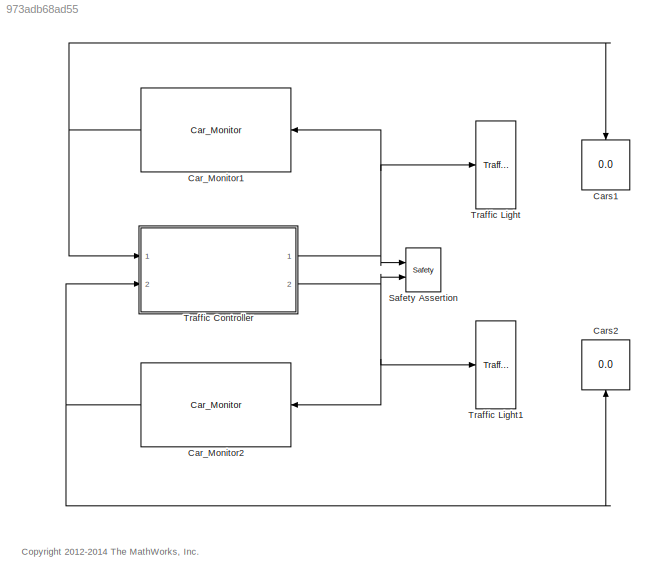
MODEL slx_973adb68ad55
KIND model
CONFIG AbsTol = auto
CONFIG EnableMultiTasking = on
CONFIG FixedStep = 0.1
CONFIG MaxStep = auto
CONFIG MinStep = auto
CONFIG RelTol = 1e-3
CONFIG SampleTimeConstraint = Unconstrained
CONFIG Solver = FixedStepDiscrete
CONFIG SolverName = FixedStepDiscrete
CONFIG StartTime = 0.0
CONFIG StopTime = 1000
BLOCK [Display]  Cars1
  Decimation = 1
  Ports = [1]
BLOCK [Display]  Cars2
  Decimation = 1
  Ports = [1]
BLOCK [Reference] Car_Monitor1  REF=sf_traffic_light_lib/Car_Monitor  (lib defined in slx_f96d7aa5815d)
  Ports = [1, 1]
  SourceBlock = sf_traffic_light_lib/Car_Monitor
  SourceProductBaseCode = SF
  SourceProductName = Stateflow
  SourceType = SubSystem
BLOCK [Reference] Car_Monitor2  REF=sf_traffic_light_lib/Car_Monitor  (lib defined in slx_f96d7aa5815d)
  Ports = [1, 1]
  SourceBlock = sf_traffic_light_lib/Car_Monitor
  SourceProductBaseCode = SF
  SourceProductName = Stateflow
  SourceType = SubSystem
BLOCK [Reference] Safety Assertion  REF=sf_traffic_light_lib/Safety  (lib defined in slx_f96d7aa5815d)
  Ports = [2]
  SourceBlock = sf_traffic_light_lib/Safety
  SourceProductBaseCode = SF
  SourceProductName = Stateflow
  SourceType = SubSystem
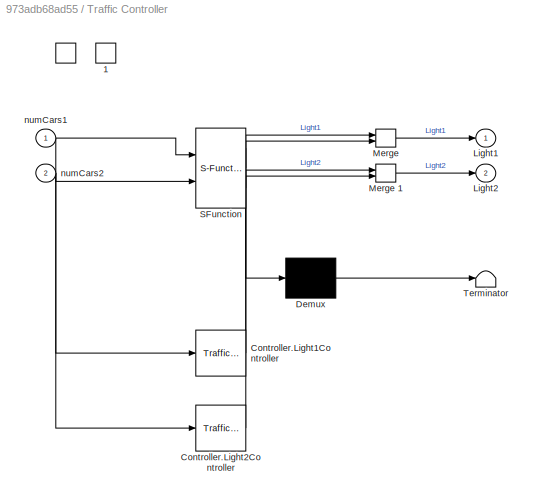
BLOCK [SubSystem] Traffic Controller
  ErrorFcn = Stateflow.Translate.translate
  PermitHierarchicalResolution = ExplicitOnly
  Ports = [2, 2]
  RequestExecContextInheritance = off
  SFBlockType = Chart
  TreatAsAtomicUnit = on
  Variant = off
BLOCK [DataStoreMemory] Traffic Controller/ 
  DataStoreName = greenLightLocked
  InitialValue = Stateflow.SLINSF.SimulinkMan.getDSMInitVal([1], 0, 'greenLightLocked')
  OutDataTypeStr = boolean
  ShowAdditionalParam = off
  SignalType = real
BLOCK [DataStoreMemory] Traffic Controller/ 1
  DataStoreName = greenLightRequested
  InitialValue = Stateflow.SLINSF.SimulinkMan.getDSMInitVal([1], 0, 'greenLightRequested')
  OutDataTypeStr = boolean
  ShowAdditionalParam = off
  SignalType = real
BLOCK [Demux] Traffic Controller/ Demux 
  Outputs = 1
  Ports = [1, 1]
BLOCK [Merge] Traffic Controller/ Merge 
  Ports = [2, 1]
BLOCK [Merge] Traffic Controller/ Merge 1
  Ports = [2, 1]
BLOCK [S-Function] Traffic Controller/ SFunction 
  EnableBusSupport = off
  FunctionName = sf_sfun
  Parameters = GREENDELAY,MAXREDDELAY,MINGREENDELAY,REDDELAY,YELLOWDELAY
  PortCounts = [2 3]
  Ports = [2, 3]
  SFcnIsStateOwnerBlock = off
  SFunctionDeploymentMode = off
  Tag = Stateflow S-Function sf_traffic_light 1
BLOCK [Terminator] Traffic Controller/ Terminator 
BLOCK [Reference] Traffic Controller/Controller.Light1Controller  REF=sf_traffic_light_lib/Traffic Controller  (lib defined in slx_f96d7aa5815d)
  Ports = [1, 1]
  SourceBlock = sf_traffic_light_lib/Traffic Controller
  SourceProductBaseCode = SF
  SourceProductName = Stateflow
BLOCK [Reference] Traffic Controller/Controller.Light2Controller  REF=sf_traffic_light_lib/Traffic Controller  (lib defined in slx_f96d7aa5815d)
  Ports = [1, 1]
  SourceBlock = sf_traffic_light_lib/Traffic Controller
  SourceProductBaseCode = SF
  SourceProductName = Stateflow
BLOCK [Outport] Traffic Controller/Light1
  IconDisplay = Port number
BLOCK [Outport] Traffic Controller/Light2
  IconDisplay = Port number
  Port = 2
BLOCK [Inport] Traffic Controller/numCars1
  IconDisplay = Port number
BLOCK [Inport] Traffic Controller/numCars2
  IconDisplay = Port number
  Port = 2
BLOCK [Reference] Traffic Light  REF=sf_traffic_light_lib/Traffic Light  (lib defined in slx_f96d7aa5815d)
  Ports = [1]
  SourceBlock = sf_traffic_light_lib/Traffic Light
  SourceProductBaseCode = SF
  SourceProductName = Stateflow
BLOCK [Reference] Traffic Light1  REF=sf_traffic_light_lib/Traffic Light  (lib defined in slx_f96d7aa5815d)
  Ports = [1]
  SourceBlock = sf_traffic_light_lib/Traffic Light
  SourceProductBaseCode = SF
  SourceProductName = Stateflow
ANNOTATION (root): <copyright redacted>
NET Car_Monitor1:1 ->  Cars1:1, Traffic Controller:1
NET Car_Monitor2:1 ->  Cars2:1, Traffic Controller:2
NET Traffic Controller:1 -> Car_Monitor1:1, Safety Assertion:1, Traffic Light:1
NET Traffic Controller:2 -> Car_Monitor2:1, Safety Assertion:2, Traffic Light1:1
note: NET lines group one-source signal fan-out (src -> all destinations, sorted); 1:1 wires keep LINE
CHART Traffic Controller states=3 transitions=0
  STATE_LABEL 'Controller'
  STATE_LABEL 'Light1Controller'
  STATE_LABEL 'Light2Controller'
  STATE_LABEL 'Light1Controller'
  STATE_LABEL 'Light2Controller'
